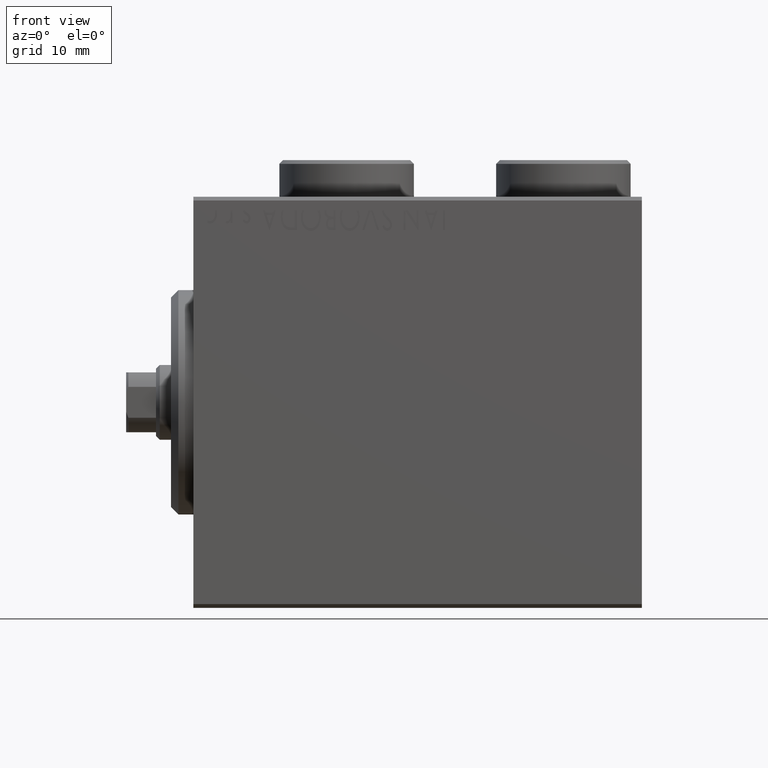
[diagram: clean part render]
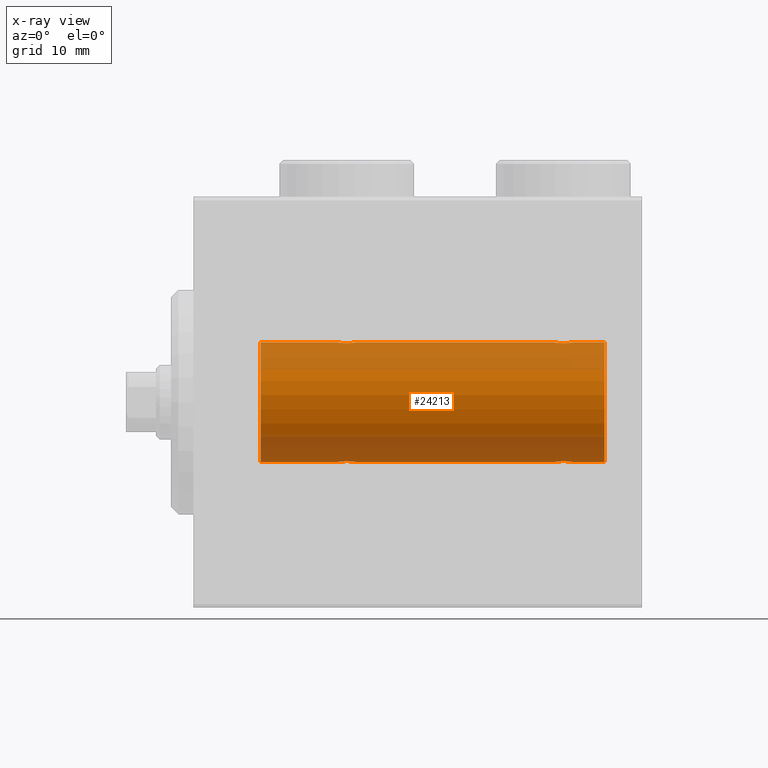
[diagram: x-ray — body ghosted, one internal face saturated and labeled with its STEP entity id]
A machine part, front view, then the same camera in x-ray: the body is ghosted and one INTERNAL B-rep face — a face not visible from any outside direction — is saturated and labeled: STEP entity #24213.
In plain terms, the highlighted cylindrical surface (partial cylindrical patch) has radius 8 mm, axis along (-1, -0, -0).
Its self-contained STEP definition (entity closure, byte-faithful):
#280 = VERTEX_POINT ( 'NONE', #7405 ) ;
#284 = LINE ( 'NONE', #17103, #16930 ) ;
#603 = VERTEX_POINT ( 'NONE', #27825 ) ;
#1160 = CARTESIAN_POINT ( 'NONE',  ( 50.59165033467901651, -0.6303134207467948613, 7.976551562999476985 ) ) ;
#1300 = CARTESIAN_POINT ( 'NONE',  ( 48.25000000000000000, -4.052181254894032391E-23, 7.999999999999998224 ) ) ;
#1339 = DIRECTION ( 'NONE',  ( -1.000000000000000000, -0.000000000000000000, -0.000000000000000000 ) ) ;
#1379 = CARTESIAN_POINT ( 'NONE',  ( 50.71715712019487654, -0.3279446529214886663, -7.994696267489722175 ) ) ;
#1391 = CARTESIAN_POINT ( 'NONE',  ( 48.50041313324087611, -0.7680324342712191443, 7.963892330120039276 ) ) ;
#2051 = CARTESIAN_POINT ( 'NONE',  ( 48.28333392022812376, -0.3297258132310598722, -7.994620111903497417 ) ) ;
#2296 = CARTESIAN_POINT ( 'NONE',  ( 21.59250917855271013, -0.6288424646912625926, -7.976670562295708145 ) ) ;
#2590 = CARTESIAN_POINT ( 'NONE',  ( 20.82701716371746770, -1.217515856520239526, 7.907063872927300174 ) ) ;
#2670 = VERTEX_POINT ( 'NONE', #41564 ) ;
#2813 = CARTESIAN_POINT ( 'NONE',  ( 20.17169333885885152, -1.217212176555599212, 7.907113222863030089 ) ) ;
#3135 = ORIENTED_EDGE ( 'NONE', *, *, #35761, .T. ) ;
#3288 = CARTESIAN_POINT ( 'NONE',  ( 19.25000000000000000, -4.052141811848771341E-23, 7.999999999999998224 ) ) ;
#3548 = EDGE_CURVE ( 'NONE', #19023, #2670, #4325, .T. ) ;
#3775 = VECTOR ( 'NONE', #9404, 1000.000000000000000 ) ;
#4053 = ORIENTED_EDGE ( 'NONE', *, *, #44260, .T. ) ;
#4175 = CARTESIAN_POINT ( 'NONE',  ( 55.00000000000000000, 9.797174393178823685E-16, -7.999999999999998224 ) ) ;
#4325 = LINE ( 'NONE', #25721, #4574 ) ;
#4574 = VECTOR ( 'NONE', #39772, 1000.000000000000000 ) ;
#4834 = CARTESIAN_POINT ( 'NONE',  ( 48.50158244334252799, -0.7695044314719172718, -7.963745725343518878 ) ) ;
#5288 = CARTESIAN_POINT ( 'NONE',  ( 48.25000000000000000, -1.041992727941584711E-14, -7.999999999999998224 ) ) ;
#5299 = CARTESIAN_POINT ( 'NONE',  ( 50.71666607977186914, -0.3297258132310481593, 7.994620111903506299 ) ) ;
#5378 = ORIENTED_EDGE ( 'NONE', *, *, #14433, .T. ) ;
#5988 = CARTESIAN_POINT ( 'NONE',  ( 19.87056207267771413, -1.092287957405118970, -7.925333492638526600 ) ) ;
#6006 = DIRECTION ( 'NONE',  ( 0.000000000000000000, 0.000000000000000000, 1.000000000000000000 ) ) ;
#6058 = CARTESIAN_POINT ( 'NONE',  ( 20.33400394983991077, -1.249894643705219410, 7.901756981264364654 ) ) ;
#6280 = CARTESIAN_POINT ( 'NONE',  ( 19.40749082144729698, -0.6288424646912639249, 7.976670562295702815 ) ) ;
#7032 = CARTESIAN_POINT ( 'NONE',  ( 50.74999999999999289, -3.945743559723369601E-16, 7.999999999999998224 ) ) ;
#7197 = VERTEX_POINT ( 'NONE', #28495 ) ;
#7327 = CARTESIAN_POINT ( 'NONE',  ( 55.00000000000000000, 0.000000000000000000, 0.000000000000000000 ) ) ;
#7405 = CARTESIAN_POINT ( 'NONE',  ( 9.000000000000001776, 9.797174393178823685E-16, -7.999999999999998224 ) ) ;
#7415 = LINE ( 'NONE', #4175, #43090 ) ;
#8022 = FACE_OUTER_BOUND ( 'NONE', #23951, .T. ) ;
#8040 = EDGE_CURVE ( 'NONE', #39221, #12077, #44542, .T. ) ;
#8059 = CARTESIAN_POINT ( 'NONE',  ( 48.25000000000000000, -1.041992727941584711E-14, -7.999999999999998224 ) ) ;
#8076 = CARTESIAN_POINT ( 'NONE',  ( 50.49841755665748622, -0.7695044314719100553, 7.963745725343520654 ) ) ;
#8297 = CARTESIAN_POINT ( 'NONE',  ( 50.59250917855269591, -0.6288424646912659233, -7.976670562295706368 ) ) ;
#8308 = CARTESIAN_POINT ( 'NONE',  ( 50.74999999999998579, -0.1654128203352880078, 7.999999999999998224 ) ) ;
#9379 = AXIS2_PLACEMENT_3D ( 'NONE', #32879, #1339, #40015 ) ;
#9404 = DIRECTION ( 'NONE',  ( -1.000000000000000000, -0.000000000000000000, -0.000000000000000000 ) ) ;
#9449 = CARTESIAN_POINT ( 'NONE',  ( 20.66599605016009988, -1.249894643705219854, -7.901756981264366431 ) ) ;
#9628 = B_SPLINE_CURVE_WITH_KNOTS ( 'NONE', 3,
 ( #37363, #19876, #16434, #6280, #30450, #44493, #12978, #26988, #34137, #2813, #6058, #20109, #2590, #44943, #26316, #13426, #21003, #10190, #20551, #27669 ),
 .UNSPECIFIED., .F., .F.,
 ( 4, 2, 2, 2, 2, 2, 2, 2, 2, 4 ),
 ( 0.003914068143704962574, 0.004403205918210079464, 0.004892343692715195487, 0.005136912579967750463, 0.005381481467220304571, 0.005870619241725414522, 0.006359757016230523606, 0.006848894790735632690, 0.007338032565240741774, 0.007827170339745850858 ),
 .UNSPECIFIED. ) ;
#9673 = CARTESIAN_POINT ( 'NONE',  ( 20.82830666114114848, -1.217212176555599434, -7.907113222863026536 ) ) ;
#9923 = CARTESIAN_POINT ( 'NONE',  ( 9.000000000000001776, 0.000000000000000000, 0.000000000000000000 ) ) ;
#9927 = VERTEX_POINT ( 'NONE', #27125 ) ;
#10190 = CARTESIAN_POINT ( 'NONE',  ( 21.71666607977186914, -0.3297258132310509904, 7.994620111903506299 ) ) ;
#10820 = CARTESIAN_POINT ( 'NONE',  ( 19.25000000000000711, -0.1654128203352910609, -7.999999999999998224 ) ) ;
#10881 = DIRECTION ( 'NONE',  ( -1.000000000000000000, -0.000000000000000000, -0.000000000000000000 ) ) ;
#11179 = ORIENTED_EDGE ( 'NONE', *, *, #8040, .T. ) ;
#11477 = CARTESIAN_POINT ( 'NONE',  ( 55.00000000000000000, 0.000000000000000000, 7.999999999999998224 ) ) ;
#11578 = VECTOR ( 'NONE', #29921, 1000.000000000000000 ) ;
#11687 = CARTESIAN_POINT ( 'NONE',  ( 21.75000000000000355, -1.338732059031457078E-15, 7.999999999999998224 ) ) ;
#11742 = CARTESIAN_POINT ( 'NONE',  ( 50.12714162834986809, -1.084361243153324050, -7.926301147147067461 ) ) ;
#12077 = VERTEX_POINT ( 'NONE', #7032 ) ;
#12530 = AXIS2_PLACEMENT_3D ( 'NONE', #9923, #23264, #6006 ) ;
#12870 = CARTESIAN_POINT ( 'NONE',  ( 55.00000000000000000, 0.000000000000000000, 7.999999999999998224 ) ) ;
#12912 = CARTESIAN_POINT ( 'NONE',  ( 21.12714162834985387, -1.084361243153318721, -7.926301147147063908 ) ) ;
#12978 = CARTESIAN_POINT ( 'NONE',  ( 19.73732994206309854, -0.9937204387496718638, 7.938174152191988853 ) ) ;
#13426 = CARTESIAN_POINT ( 'NONE',  ( 21.49841755665748977, -0.7695044314719070577, 7.963745725343517101 ) ) ;
#13586 = CARTESIAN_POINT ( 'NONE',  ( 20.33559448851098850, -1.250104850332076634, -7.901723728054487417 ) ) ;
#14002 = DIRECTION ( 'NONE',  ( 0.000000000000000000, 0.000000000000000000, 1.000000000000000000 ) ) ;
#14429 = ORIENTED_EDGE ( 'NONE', *, *, #37722, .T. ) ;
#14433 = EDGE_CURVE ( 'NONE', #7197, #26355, #7415, .T. ) ;
#15209 = CARTESIAN_POINT ( 'NONE',  ( 50.12943792732228587, -1.092287957405118082, 7.925333492638526600 ) ) ;
#15429 = CARTESIAN_POINT ( 'NONE',  ( 49.17298283628255007, -1.217515856520247075, -7.907063872927296622 ) ) ;
#15487 = CIRCLE ( 'NONE', #12530, 7.999999999999998224 ) ;
#15666 = CARTESIAN_POINT ( 'NONE',  ( 49.82830666114113427, -1.217212176555605208, -7.907113222863025648 ) ) ;
#15904 = CARTESIAN_POINT ( 'NONE',  ( 48.67312100220859605, -0.9409612394163524574, 7.944680966683013601 ) ) ;
#16141 = CARTESIAN_POINT ( 'NONE',  ( 21.71715712019488009, -0.3279446529214856687, -7.994696267489723951 ) ) ;
#16366 = CARTESIAN_POINT ( 'NONE',  ( 21.49958686675913810, -0.7680324342712174790, -7.963892330120039276 ) ) ;
#16434 = CARTESIAN_POINT ( 'NONE',  ( 19.28284287980511991, -0.3279446529214874451, 7.994696267489720398 ) ) ;
#16930 = VECTOR ( 'NONE', #42401, 1000.000000000000000 ) ;
#17103 = CARTESIAN_POINT ( 'NONE',  ( 55.00000000000000000, 0.000000000000000000, 7.999999999999998224 ) ) ;
#17711 = CARTESIAN_POINT ( 'NONE',  ( 19.25000000000000711, -3.107364149877583097E-15, -7.999999999999998224 ) ) ;
#18549 = ORIENTED_EDGE ( 'NONE', *, *, #38863, .T. ) ;
#18886 = CARTESIAN_POINT ( 'NONE',  ( 48.24999999999999289, -0.1654128203352973059, -7.999999999999994671 ) ) ;
#19023 = VERTEX_POINT ( 'NONE', #8059 ) ;
#19111 = CARTESIAN_POINT ( 'NONE',  ( 50.26267005793690146, -0.9937204387496750835, -7.938174152191992405 ) ) ;
#19257 = EDGE_CURVE ( 'NONE', #7197, #603, #35066, .T. ) ;
#19338 = CARTESIAN_POINT ( 'NONE',  ( 50.74999999999999289, 9.797173987957720246E-16, -7.999999999999998224 ) ) ;
#19345 = VERTEX_POINT ( 'NONE', #11687 ) ;
#19349 = CARTESIAN_POINT ( 'NONE',  ( 48.25000000000000000, -0.1632520343443085997, 8.000000000000000000 ) ) ;
#19876 = CARTESIAN_POINT ( 'NONE',  ( 19.25000000000000000, -0.1632520343443078503, 7.999999999999998224 ) ) ;
#20041 = CARTESIAN_POINT ( 'NONE',  ( 19.73184514123549249, -0.9994562523959139577, -7.938165420771276182 ) ) ;
#20109 = CARTESIAN_POINT ( 'NONE',  ( 20.66440551148902571, -1.250104850332075523, 7.901723728054487417 ) ) ;
#20264 = CARTESIAN_POINT ( 'NONE',  ( 21.75000000000000355, 9.797173987965608855E-16, -7.999999999999998224 ) ) ;
#20551 = CARTESIAN_POINT ( 'NONE',  ( 21.75000000000000000, -0.1654128203352878412, 8.000000000000001776 ) ) ;
#21003 = CARTESIAN_POINT ( 'NONE',  ( 21.59165033467900940, -0.6303134207467970818, 7.976551562999475209 ) ) ;
#21055 = VERTEX_POINT ( 'NONE', #22404 ) ;
#21359 = DIRECTION ( 'NONE',  ( -1.000000000000000000, 0.000000000000000000, 0.000000000000000000 ) ) ;
#22103 = CARTESIAN_POINT ( 'NONE',  ( 48.25000000000000000, -4.052181254894032391E-23, 7.999999999999998224 ) ) ;
#22335 = CARTESIAN_POINT ( 'NONE',  ( 49.66599605016007501, -1.249894643705225405, -7.901756981264364654 ) ) ;
#22404 = CARTESIAN_POINT ( 'NONE',  ( 9.000000000000001776, 0.000000000000000000, 7.999999999999998224 ) ) ;
#22561 = CARTESIAN_POINT ( 'NONE',  ( 48.87056207267769992, -1.092287957405125631, -7.925333492638526600 ) ) ;
#22591 = AXIS2_PLACEMENT_3D ( 'NONE', #7327, #21359, #14002 ) ;
#23264 = DIRECTION ( 'NONE',  ( -1.000000000000000000, 0.000000000000000000, 0.000000000000000000 ) ) ;
#23937 = CARTESIAN_POINT ( 'NONE',  ( 50.74999999999999289, 9.797173987957720246E-16, -7.999999999999998224 ) ) ;
#23951 = EDGE_LOOP ( 'NONE', ( #44588, #5378, #14429, #28581, #4053, #28567, #3135, #31573, #18549, #29258, #11179, #24026 ) ) ;
#23978 = EDGE_CURVE ( 'NONE', #9927, #280, #34065, .T. ) ;
#24026 = ORIENTED_EDGE ( 'NONE', *, *, #31270, .F. ) ;
#24147 = CARTESIAN_POINT ( 'NONE',  ( 20.17298283628253230, -1.217515856520239970, -7.907063872927298398 ) ) ;
#24213 = ADVANCED_FACE ( 'NONE', ( #8022 ), #39547, .F. ) ;
#24376 = CARTESIAN_POINT ( 'NONE',  ( 19.28333392022813797, -0.3297258132310537104, -7.994620111903500970 ) ) ;
#25549 = CARTESIAN_POINT ( 'NONE',  ( 49.33400394983991077, -1.249894643705222741, 7.901756981264364654 ) ) ;
#25721 = CARTESIAN_POINT ( 'NONE',  ( 55.00000000000000000, 9.797174393178823685E-16, -7.999999999999998224 ) ) ;
#25778 = CARTESIAN_POINT ( 'NONE',  ( 48.87285837165013191, -1.084361243153322718, 7.926301147147065684 ) ) ;
#26190 = LINE ( 'NONE', #11477, #35517 ) ;
#26316 = CARTESIAN_POINT ( 'NONE',  ( 21.26815485876450396, -0.9994562523959114042, 7.938165420771274405 ) ) ;
#26355 = VERTEX_POINT ( 'NONE', #23937 ) ;
#26457 = CARTESIAN_POINT ( 'NONE',  ( 48.73732994206309144, -0.9937204387496759717, 7.938174152191988853 ) ) ;
#26913 = CARTESIAN_POINT ( 'NONE',  ( 55.00000000000000000, 9.797174393178823685E-16, -7.999999999999998224 ) ) ;
#26920 = CARTESIAN_POINT ( 'NONE',  ( 21.05544625654724200, -1.122809931695431640, -7.920878051565290789 ) ) ;
#26988 = CARTESIAN_POINT ( 'NONE',  ( 19.87285837165015323, -1.084361243153319387, 7.926301147147065684 ) ) ;
#27125 = CARTESIAN_POINT ( 'NONE',  ( 19.25000000000000711, -3.107364149877583097E-15, -7.999999999999998224 ) ) ;
#27669 = CARTESIAN_POINT ( 'NONE',  ( 21.75000000000000355, -1.338732059031457078E-15, 7.999999999999998224 ) ) ;
#27825 = CARTESIAN_POINT ( 'NONE',  ( 55.00000000000000000, 0.000000000000000000, 7.999999999999998224 ) ) ;
#28495 = CARTESIAN_POINT ( 'NONE',  ( 55.00000000000000000, 9.797174393178823685E-16, -7.999999999999998224 ) ) ;
#28567 = ORIENTED_EDGE ( 'NONE', *, *, #23978, .T. ) ;
#28581 = ORIENTED_EDGE ( 'NONE', *, *, #3548, .T. ) ;
#29258 = ORIENTED_EDGE ( 'NONE', *, *, #43498, .F. ) ;
#29684 = CARTESIAN_POINT ( 'NONE',  ( 49.33559448851099205, -1.250104850332083961, -7.901723728054489193 ) ) ;
#29921 = DIRECTION ( 'NONE',  ( -1.000000000000000000, -0.000000000000000000, -0.000000000000000000 ) ) ;
#29955 = B_SPLINE_CURVE_WITH_KNOTS ( 'NONE', 3,
 ( #19338, #36593, #1379, #8297, #30360, #32920, #19111, #11742, #44181, #15666, #22335, #29684, #15429, #22561, #37273, #4834, #43731, #2051, #18886, #5288 ),
 .UNSPECIFIED., .F., .F.,
 ( 4, 2, 2, 2, 2, 2, 2, 2, 2, 4 ),
 ( 0.003914068143704938288, 0.004403205918210059515, 0.004892343692715181609, 0.005136912579967734850, 0.005381481467220288958, 0.005870619241725396308, 0.006359757016230504524, 0.006848894790735611873, 0.007338032565240720090, 0.007827170339745828306 ),
 .UNSPECIFIED. ) ;
#30360 = CARTESIAN_POINT ( 'NONE',  ( 50.49958686675913100, -0.7680324342712171459, -7.963892330120039276 ) ) ;
#30382 = CARTESIAN_POINT ( 'NONE',  ( 21.32687899779140750, -0.9409612394163509030, -7.944680966683015377 ) ) ;
#30450 = CARTESIAN_POINT ( 'NONE',  ( 19.50041313324086190, -0.7680324342712145924, 7.963892330120035723 ) ) ;
#31270 = EDGE_CURVE ( 'NONE', #603, #12077, #284, .T. ) ;
#31573 = ORIENTED_EDGE ( 'NONE', *, *, #35028, .F. ) ;
#32702 = CARTESIAN_POINT ( 'NONE',  ( 48.28284287980511635, -0.3279446529214881112, 7.994696267489722175 ) ) ;
#32879 = CARTESIAN_POINT ( 'NONE',  ( 55.00000000000000000, 0.000000000000000000, 0.000000000000000000 ) ) ;
#32920 = CARTESIAN_POINT ( 'NONE',  ( 50.32687899779141105, -0.9409612394163516802, -7.944680966683013601 ) ) ;
#32930 = CARTESIAN_POINT ( 'NONE',  ( 48.40749082144728987, -0.6288424646912654792, 7.976670562295706368 ) ) ;
#33150 = CARTESIAN_POINT ( 'NONE',  ( 49.66440551148902927, -1.250104850332078410, 7.901723728054489193 ) ) ;
#33384 = CARTESIAN_POINT ( 'NONE',  ( 50.26815485876450396, -0.9994562523959150679, 7.938165420771270853 ) ) ;
#34065 = LINE ( 'NONE', #26913, #11578 ) ;
#34072 = CARTESIAN_POINT ( 'NONE',  ( 19.50158244334252089, -0.7695044314719098333, -7.963745725343515325 ) ) ;
#34137 = CARTESIAN_POINT ( 'NONE',  ( 19.94455374345276510, -1.122809931695431862, 7.920878051565290789 ) ) ;
#35028 = EDGE_CURVE ( 'NONE', #40256, #21055, #40254, .T. ) ;
#35066 = CIRCLE ( 'NONE', #22591, 7.999999999999998224 ) ;
#35517 = VECTOR ( 'NONE', #39321, 1000.000000000000000 ) ;
#35761 = EDGE_CURVE ( 'NONE', #280, #21055, #15487, .T. ) ;
#36581 = B_SPLINE_CURVE_WITH_KNOTS ( 'NONE', 3,
 ( #20264, #40976, #16141, #2296, #16366, #30382, #44432, #12912, #26920, #9673, #9449, #13586, #24147, #5988, #20041, #34072, #38872, #24376, #10820, #17711 ),
 .UNSPECIFIED., .F., .F.,
 ( 4, 2, 2, 2, 2, 2, 2, 2, 2, 4 ),
 ( 0.003914068143704951298, 0.004403205918210062117, 0.004892343692715172936, 0.005136912579967725309, 0.005381481467220276815, 0.005870619241725390236, 0.006359757016230503657, 0.006848894790735617077, 0.007338032565240730498, 0.007827170339745843919 ),
 .UNSPECIFIED. ) ;
#36593 = CARTESIAN_POINT ( 'NONE',  ( 50.75000000000000711, -0.1632520343443072675, -8.000000000000000000 ) ) ;
#36604 = CARTESIAN_POINT ( 'NONE',  ( 50.74999999999999289, -3.945743559723369601E-16, 7.999999999999998224 ) ) ;
#36829 = CARTESIAN_POINT ( 'NONE',  ( 49.17169333885884441, -1.217212176555601433, 7.907113222863031865 ) ) ;
#37273 = CARTESIAN_POINT ( 'NONE',  ( 48.73184514123547473, -0.9994562523959213962, -7.938165420771272629 ) ) ;
#37363 = CARTESIAN_POINT ( 'NONE',  ( 19.25000000000000000, -4.052141811848771341E-23, 7.999999999999998224 ) ) ;
#37722 = EDGE_CURVE ( 'NONE', #26355, #19023, #29955, .T. ) ;
#38863 = EDGE_CURVE ( 'NONE', #40256, #19345, #9628, .T. ) ;
#38872 = CARTESIAN_POINT ( 'NONE',  ( 19.40834966532100481, -0.6303134207467991912, -7.976551562999473433 ) ) ;
#39221 = VERTEX_POINT ( 'NONE', #1300 ) ;
#39321 = DIRECTION ( 'NONE',  ( -1.000000000000000000, -0.000000000000000000, -0.000000000000000000 ) ) ;
#39547 = CYLINDRICAL_SURFACE ( 'NONE', #9379, 7.999999999999998224 ) ;
#39772 = DIRECTION ( 'NONE',  ( -1.000000000000000000, -0.000000000000000000, -0.000000000000000000 ) ) ;
#39833 = CARTESIAN_POINT ( 'NONE',  ( 48.94455374345274379, -1.122809931695432306, 7.920878051565290789 ) ) ;
#40015 = DIRECTION ( 'NONE',  ( 0.000000000000000000, 0.000000000000000000, 1.000000000000000000 ) ) ;
#40254 = LINE ( 'NONE', #12870, #3775 ) ;
#40256 = VERTEX_POINT ( 'NONE', #3288 ) ;
#40976 = CARTESIAN_POINT ( 'NONE',  ( 21.75000000000000355, -0.1632520343443068511, -7.999999999999998224 ) ) ;
#41564 = CARTESIAN_POINT ( 'NONE',  ( 21.75000000000000355, 9.797173987965608855E-16, -7.999999999999998224 ) ) ;
#42401 = DIRECTION ( 'NONE',  ( -1.000000000000000000, -0.000000000000000000, -0.000000000000000000 ) ) ;
#43090 = VECTOR ( 'NONE', #10881, 1000.000000000000000 ) ;
#43279 = CARTESIAN_POINT ( 'NONE',  ( 49.82701716371747835, -1.217515856520240636, 7.907063872927295733 ) ) ;
#43498 = EDGE_CURVE ( 'NONE', #39221, #19345, #26190, .T. ) ;
#43731 = CARTESIAN_POINT ( 'NONE',  ( 48.40834966532099770, -0.6303134207468056305, -7.976551562999471656 ) ) ;
#44181 = CARTESIAN_POINT ( 'NONE',  ( 50.05544625654724911, -1.122809931695437413, -7.920878051565289901 ) ) ;
#44260 = EDGE_CURVE ( 'NONE', #2670, #9927, #36581, .T. ) ;
#44432 = CARTESIAN_POINT ( 'NONE',  ( 21.26267005793691212, -0.9937204387496720859, -7.938174152191990629 ) ) ;
#44493 = CARTESIAN_POINT ( 'NONE',  ( 19.67312100220858895, -0.9409612394163490157, 7.944680966683015377 ) ) ;
#44542 = B_SPLINE_CURVE_WITH_KNOTS ( 'NONE', 3,
 ( #22103, #19349, #32702, #32930, #1391, #15904, #26457, #25778, #39833, #36829, #25549, #33150, #43279, #15209, #33384, #8076, #1160, #5299, #8308, #36604 ),
 .UNSPECIFIED., .F., .F.,
 ( 4, 2, 2, 2, 2, 2, 2, 2, 2, 4 ),
 ( 0.003914068143704941757, 0.004403205918210043035, 0.004892343692715144313, 0.005136912579967702758, 0.005381481467220260335, 0.005870619241725376358, 0.006359757016230491514, 0.006848894790735606669, 0.007338032565240721825, 0.007827170339745836980 ),
 .UNSPECIFIED. ) ;
#44588 = ORIENTED_EDGE ( 'NONE', *, *, #19257, .F. ) ;
#44943 = CARTESIAN_POINT ( 'NONE',  ( 21.12943792732228587, -1.092287957405118526, 7.925333492638524824 ) ) ;